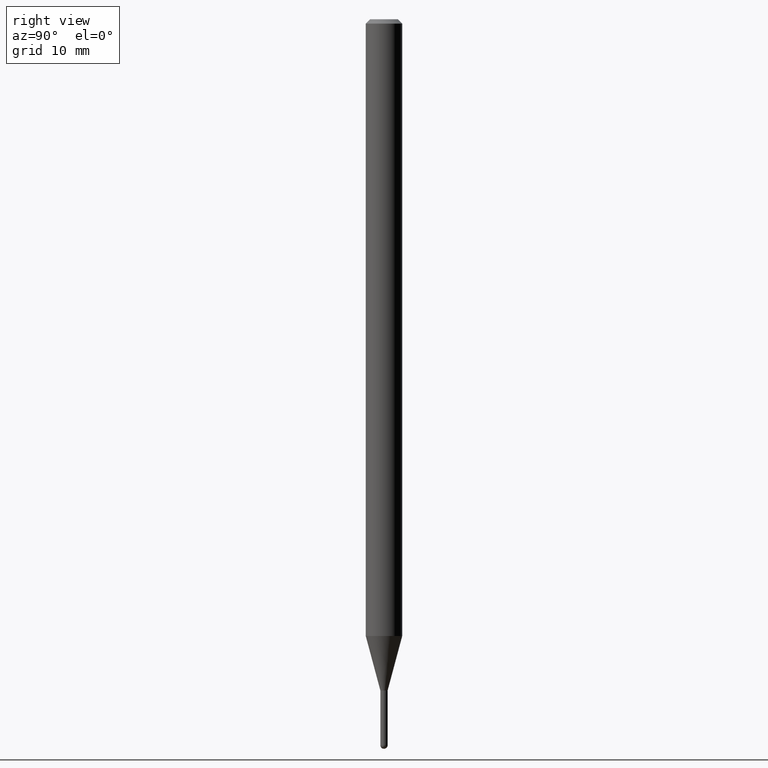
[diagram: clean part render]
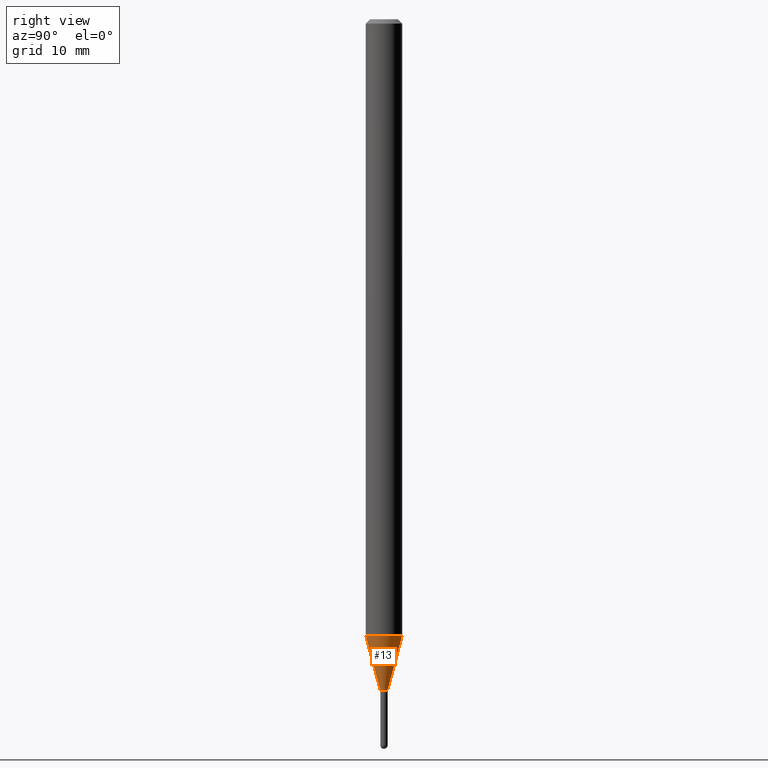
[diagram: same view with one face highlighted and labeled with its STEP entity id]
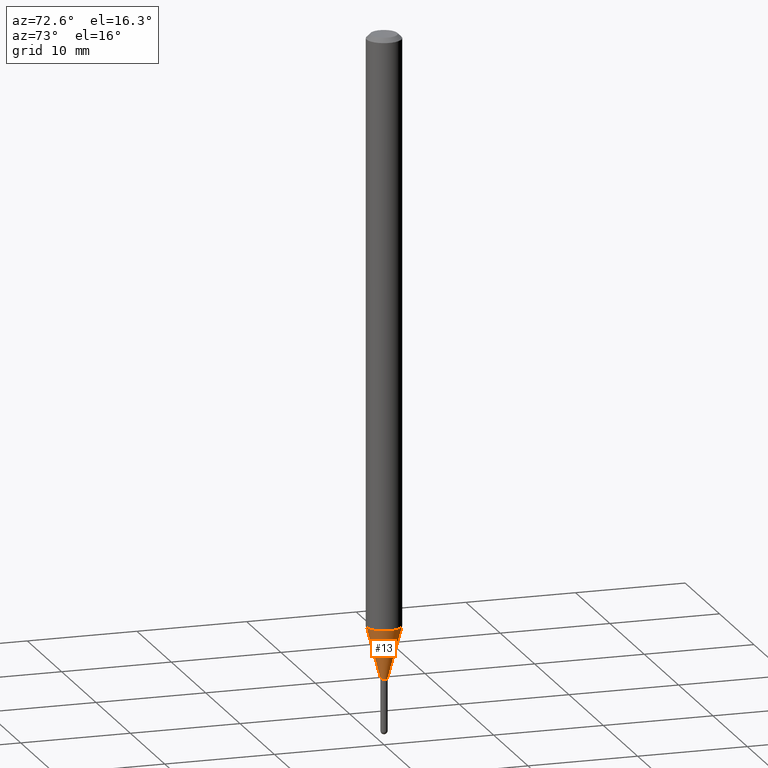
[diagram: same view with one face highlighted and labeled with its STEP entity id]
A machine part, right view. The second image highlights one B-rep face of the part: STEP entity #13.
A second angle (auxiliary view) of the same face is appended — the face is thin or edge-on in the first view.
In plain terms, the highlighted conical surface has half-angle 15 deg.
Its self-contained STEP definition (entity closure, byte-faithful):
#13 = ADVANCED_FACE ( 'NONE', ( #176 ), #451, .T. ) ;
#44 = AXIS2_PLACEMENT_3D ( 'NONE', #478, #253, #178 ) ;
#52 = ORIENTED_EDGE ( 'NONE', *, *, #406, .F. ) ;
#65 = LINE ( 'NONE', #137, #487 ) ;
#88 = ORIENTED_EDGE ( 'NONE', *, *, #347, .T. ) ;
#112 = VECTOR ( 'NONE', #169, 39.37007874015748854 ) ;
#122 = LINE ( 'NONE', #394, #112 ) ;
#137 = CARTESIAN_POINT ( 'NONE',  ( -8.728703347102347107E-17, -0.01250000000000823022, -2.300000000000000266 ) ) ;
#142 = EDGE_LOOP ( 'NONE', ( #163, #88, #307, #52 ) ) ;
#163 = ORIENTED_EDGE ( 'NONE', *, *, #352, .T. ) ;
#164 = CARTESIAN_POINT ( 'NONE',  ( -8.728703347102347107E-17, -0.01250000000000823022, -2.300000000000000266 ) ) ;
#166 = CARTESIAN_POINT ( 'NONE',  ( 4.440892098501140893E-16, 0.06249999999999260314, -2.113397459621563002 ) ) ;
#169 = DIRECTION ( 'NONE',  ( 1.839019923739647253E-15, 0.2588190451025315642, 0.9659258262890653146 ) ) ;
#176 = FACE_OUTER_BOUND ( 'NONE', #142, .T. ) ;
#178 = DIRECTION ( 'NONE',  ( -6.982962677686265922E-15, -1.000000000000000000, 0.000000000000000000 ) ) ;
#204 = VERTEX_POINT ( 'NONE', #387 ) ;
#207 = CARTESIAN_POINT ( 'NONE',  ( 5.624757830680421118E-29, -8.030149915635382250E-15, -2.300000000000000266 ) ) ;
#239 = VERTEX_POINT ( 'NONE', #166 ) ;
#242 = CIRCLE ( 'NONE', #44, 0.01250000000000020019 ) ;
#249 = DIRECTION ( 'NONE',  ( -6.982962677686265922E-15, -1.000000000000000000, 0.000000000000000000 ) ) ;
#253 = DIRECTION ( 'NONE',  ( -2.445546882904530641E-29, 3.491369528537122392E-15, 1.000000000000000000 ) ) ;
#269 = AXIS2_PLACEMENT_3D ( 'NONE', #435, #361, #470 ) ;
#280 = VERTEX_POINT ( 'NONE', #164 ) ;
#307 = ORIENTED_EDGE ( 'NONE', *, *, #325, .F. ) ;
#325 = EDGE_CURVE ( 'NONE', #373, #239, #490, .T. ) ;
#347 = EDGE_CURVE ( 'NONE', #204, #239, #122, .T. ) ;
#352 = EDGE_CURVE ( 'NONE', #280, #204, #242, .T. ) ;
#361 = DIRECTION ( 'NONE',  ( -2.445546882904530641E-29, 3.491369528537122392E-15, 1.000000000000000000 ) ) ;
#367 = DIRECTION ( 'NONE',  ( -2.445546882904530641E-29, 3.491369528537122392E-15, 1.000000000000000000 ) ) ;
#373 = VERTEX_POINT ( 'NONE', #375 ) ;
#375 = CARTESIAN_POINT ( 'NONE',  ( -4.364351673553399497E-16, -0.06250000000000736911, -2.113397459621562557 ) ) ;
#387 = CARTESIAN_POINT ( 'NONE',  ( 2.664535259100923364E-16, 0.01249999999999216842, -2.300000000000000266 ) ) ;
#394 = CARTESIAN_POINT ( 'NONE',  ( 8.881784197007017664E-17, 0.01249999999999216842, -2.300000000000000266 ) ) ;
#406 = EDGE_CURVE ( 'NONE', #280, #373, #65, .T. ) ;
#435 = CARTESIAN_POINT ( 'NONE',  ( 5.168412569715866303E-29, -7.378651492210488273E-15, -2.113397459621562557 ) ) ;
#451 = CONICAL_SURFACE ( 'NONE', #475, 0.01250000000000020019, 0.2617993877991571794 ) ;
#452 = DIRECTION ( 'NONE',  ( -1.807323732225376682E-15, -0.2588190451025248473, 0.9659258262890670910 ) ) ;
#470 = DIRECTION ( 'NONE',  ( -6.982962677686265922E-15, -1.000000000000000000, 4.370956789862821150E-15 ) ) ;
#475 = AXIS2_PLACEMENT_3D ( 'NONE', #207, #367, #249 ) ;
#478 = CARTESIAN_POINT ( 'NONE',  ( 5.624757830680421118E-29, -8.030149915635382250E-15, -2.300000000000000266 ) ) ;
#487 = VECTOR ( 'NONE', #452, 39.37007874015748143 ) ;
#490 = CIRCLE ( 'NONE', #269, 0.06250000000000000000 ) ;